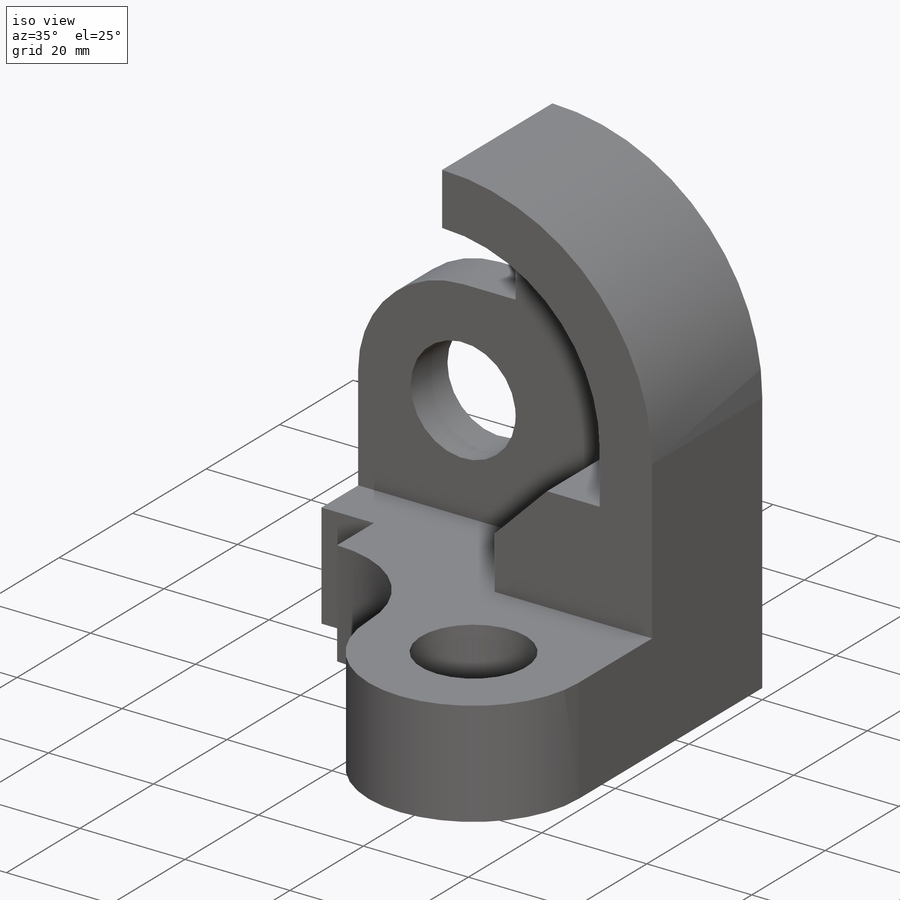
[diagram: iso view]
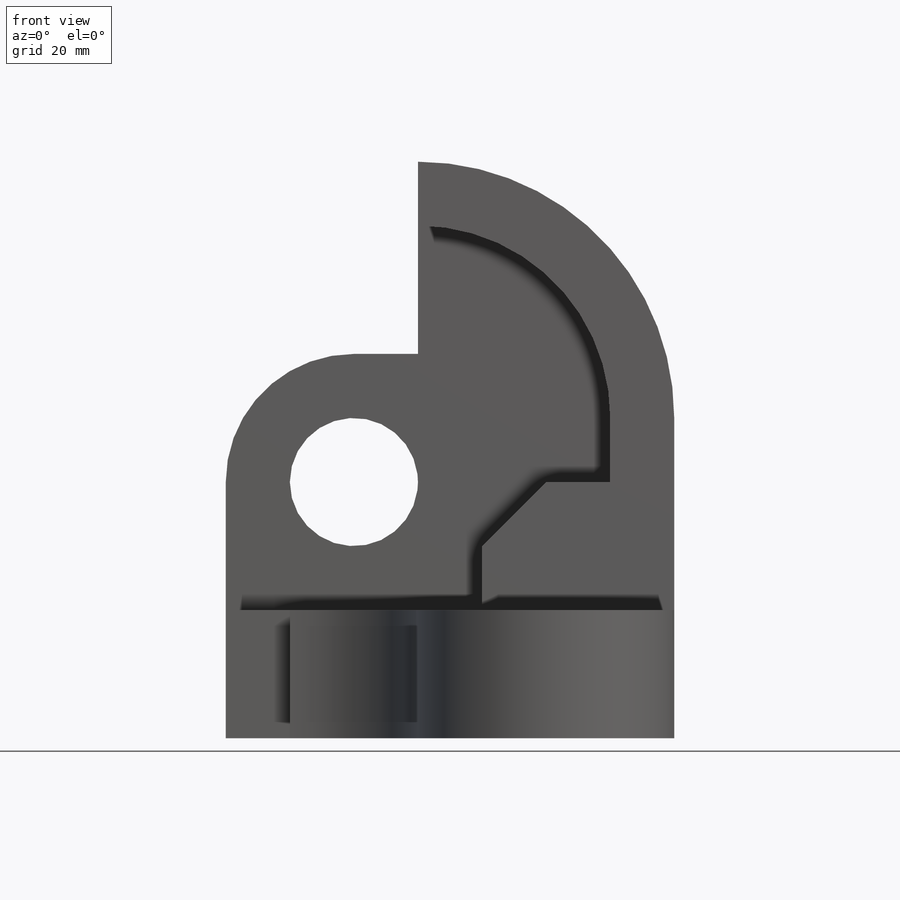
[diagram: front view]
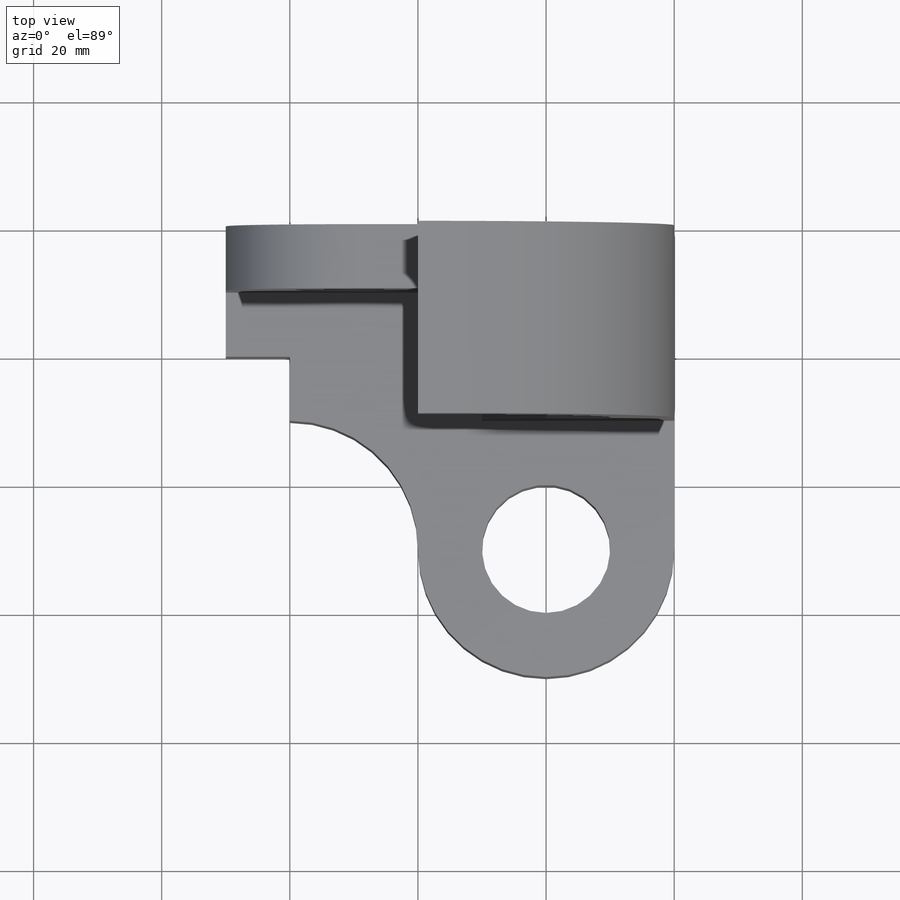
[diagram: top view]
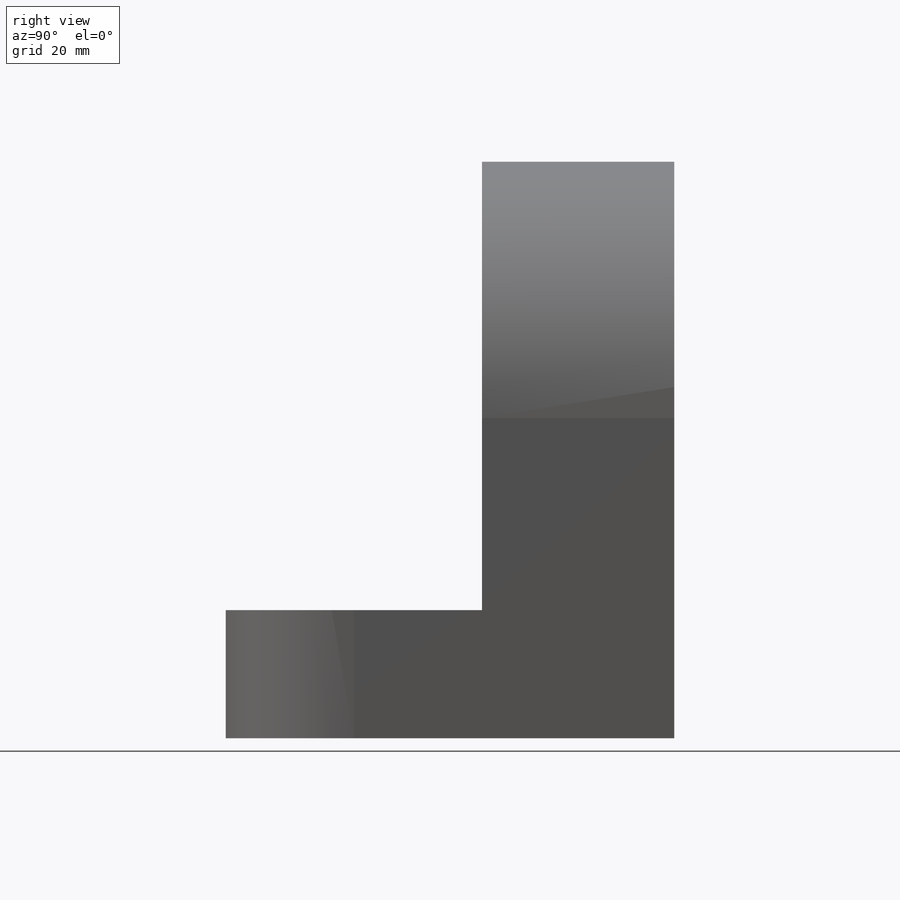
[diagram: right view]
SOLIDWORKS PART (.sldprt)
format: sldprt  version: not decoded by parser v0  size: 235,520 bytes
history: native  units: mm
features: sketch x6, extrude x3, cut_extrude x2, material x1 (+13 scaffold rows collapsed)
feature tree (25):
  scaffold x13  (default folders/planes/origin — collapsed)
  material  "Material <not specified>"
  sketch  "Sketch1"  dims[c1.D1=40.0mm c1.D2=30.0mm c1.D3=10.0mm c1.D4=10.0mm c1.D5=30.0mm c1.D6=30.0mm c1.D7=10.0mm c1.D8=10.0mm c2.D4=10.0mm c2.D8=20.0mm c2.D5=10.0mm c3.D8=10.0mm]
  extrude  "Boss-Extrude1"  Depth=30mm
  sketch  "Sketch2"  dims[c1.D2=20.0mm c1.D5=20.0mm c1.D1=30.0mm c1.D3=40.0mm c1.D4=70.0mm c2.D5=10.0mm]
  extrude  "Boss-Extrude2"  Depth=10mm
  sketch  "Sketch3"
  extrude  "Boss-Extrude3"  Depth=70mm
  sketch  "Sketch4"  dims[D1=20.0mm D2=20.0mm D3=20.0mm D4=10.0mm D5=10.0mm]
  sketch  "Sketch5"  dims[D1=50.0mm]
  cut_extrude  "Cut-Extrude1"  Depth=50mm
  sketch  "Sketch6"  dims[c1.D3=20.0mm c1.D1=20.0mm c1.D2=~20.076917mm c2.D1=20.0mm c2.D2=20.0mm]
  cut_extrude  "Cut-Extrude2"  Depth=50mm
decode coverage: 10 of 11 modeling features carry decoded parameters
note: ~ marks probable driven/reference dimensions
note: suppression state not decoded; provenance and decode notes live in map.json
